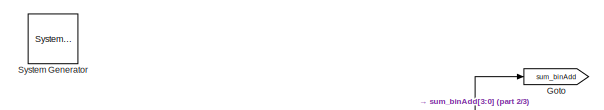
[diagram: root canvas - part 1/3, top left region]
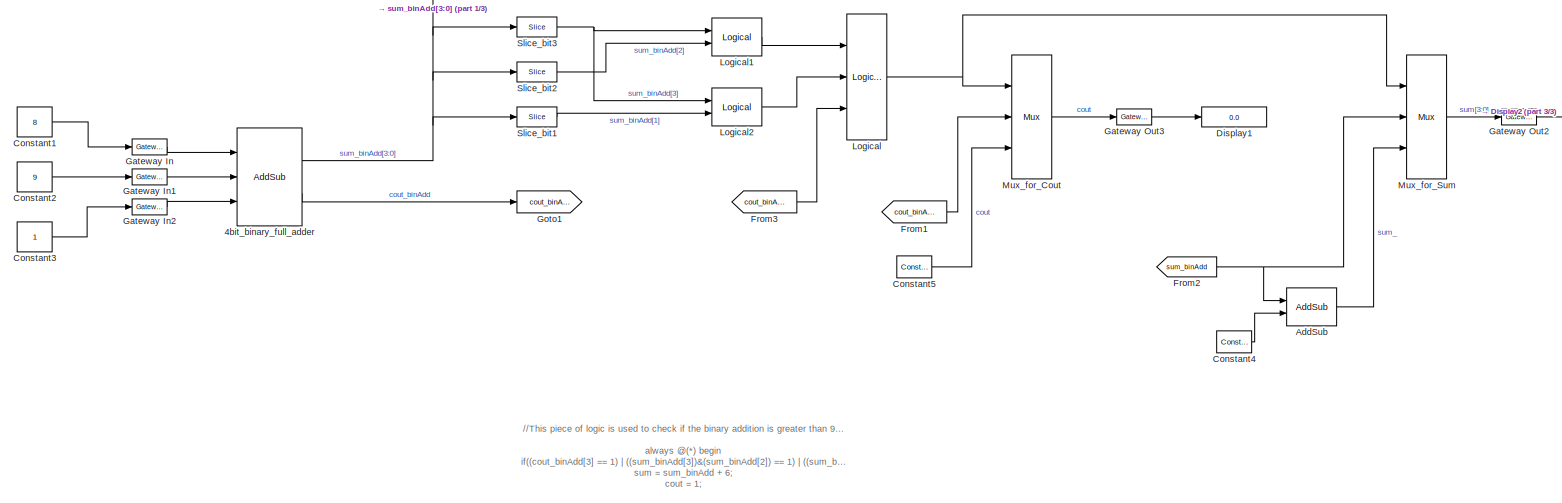
[diagram: root canvas - part 2/3, most of the canvas]
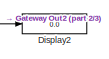
[diagram: root canvas - part 3/3, middle right region]
MODEL slx_13b7193d9d61
KIND model
CONFIG AbsTol = auto
CONFIG EnableMultiTasking = off
CONFIG FixedStep = 0.001
CONFIG MaxStep = auto
CONFIG MinStep = auto
CONFIG PostLoadFcn = , if any(exist('dsrtsu_mdlpostloadfcn', 'file') == [2, 3, 6]), try dsrtsu_mdlpostloadfcn('Execute', bdroot); catch fprintf('Error in PostLoadFcn (dsrtsu_mdlpostloadfcn) for model "%s":\n %s\n', bdroot, lasterr); end, end, \n
CONFIG RelTol = 1e-3
CONFIG SampleTimeConstraint = Unconstrained
CONFIG Solver = FixedStepAuto
CONFIG SolverName = FixedStepAuto
CONFIG StartTime = 0.0
CONFIG StopTime = 1
BLOCK [Reference]  System Generator  REF=xbsIndex_r4/ System Generator
  AttributesFormatString = System\nGenerator
  Ports = []
  SourceBlock = xbsIndex_r4/ System Generator
  SourceType = Xilinx System Generator Block
  Tag = genX
  UserDataPersistent = on
BLOCK [Reference] 4bit_binary_full_adder  REF=xbsIndex_r4/AddSub
  Ports = [3, 2]
  SourceBlock = xbsIndex_r4/AddSub
  SourceType = Xilinx Adder/Subtracter Block
BLOCK [Reference] AddSub  REF=xbsIndex_r4/AddSub
  Ports = [2, 1]
  SourceBlock = xbsIndex_r4/AddSub
  SourceType = Xilinx Adder/Subtracter Block
BLOCK [Constant] Constant1
  OutDataTypeStr = uint8
  OutMax = 9
  OutMin = 0
  Value = 8
BLOCK [Constant] Constant2
  OutDataTypeStr = uint8
  OutMax = 9
  OutMin = 0
  Value = 9
BLOCK [Constant] Constant3
  OutDataTypeStr = uint8
BLOCK [Reference] Constant4  REF=xbsIndex_r4/Constant
  Ports = [0, 1]
  SourceBlock = xbsIndex_r4/Constant
  SourceType = Xilinx Constant Block Block
BLOCK [Reference] Constant5  REF=xbsIndex_r4/Constant
  Ports = [0, 1]
  SourceBlock = xbsIndex_r4/Constant
  SourceType = Xilinx Constant Block Block
BLOCK [Display] Display1
  Decimation = 1
  Format = hex (Stored Integer)
  Ports = [1]
BLOCK [Display] Display2
  Decimation = 1
  Format = hex (Stored Integer)
  Ports = [1]
BLOCK [From] From1
  GotoTag = cout_binAdd
  TagVisibility = global
BLOCK [From] From2
  GotoTag = sum_binAdd
  TagVisibility = global
BLOCK [From] From3
  GotoTag = cout_binAdd
  TagVisibility = global
BLOCK [Reference] Gateway In  REF=xbsIndex_r4/Gateway In
  Ports = [1, 1]
  SourceBlock = xbsIndex_r4/Gateway In
  SourceType = Xilinx Gateway In Block
BLOCK [Reference] Gateway In1  REF=xbsIndex_r4/Gateway In
  Ports = [1, 1]
  SourceBlock = xbsIndex_r4/Gateway In
  SourceType = Xilinx Gateway In Block
BLOCK [Reference] Gateway In2  REF=xbsIndex_r4/Gateway In
  Ports = [1, 1]
  SourceBlock = xbsIndex_r4/Gateway In
  SourceType = Xilinx Gateway In Block
BLOCK [Reference] Gateway Out2  REF=xbsIndex_r4/Gateway Out
  Ports = [1, 1]
  SourceBlock = xbsIndex_r4/Gateway Out
  SourceType = Xilinx Gateway Out Block
BLOCK [Reference] Gateway Out3  REF=xbsIndex_r4/Gateway Out
  Ports = [1, 1]
  SourceBlock = xbsIndex_r4/Gateway Out
  SourceType = Xilinx Gateway Out Block
BLOCK [Goto] Goto
  GotoTag = sum_binAdd
  TagVisibility = global
BLOCK [Goto] Goto1
  GotoTag = cout_binAdd
  TagVisibility = global
BLOCK [Reference] Logical  REF=xbsIndex_r4/Logical
  Ports = [3, 1]
  SourceBlock = xbsIndex_r4/Logical
  SourceType = Xilinx Logical Block Block
BLOCK [Reference] Logical1  REF=xbsIndex_r4/Logical
  Ports = [2, 1]
  SourceBlock = xbsIndex_r4/Logical
  SourceType = Xilinx Logical Block Block
BLOCK [Reference] Logical2  REF=xbsIndex_r4/Logical
  Ports = [2, 1]
  SourceBlock = xbsIndex_r4/Logical
  SourceType = Xilinx Logical Block Block
BLOCK [Reference] Mux_for_Cout  REF=xbsIndex_r4/Mux
  Ports = [3, 1]
  SourceBlock = xbsIndex_r4/Mux
  SourceType = Xilinx Bus Multiplexer Block
BLOCK [Reference] Mux_for_Sum  REF=xbsIndex_r4/Mux
  Ports = [3, 1]
  SourceBlock = xbsIndex_r4/Mux
  SourceType = Xilinx Bus Multiplexer Block
BLOCK [Reference] Slice_bit1  REF=xbsIndex_r4/Slice
  Ports = [1, 1]
  SourceBlock = xbsIndex_r4/Slice
  SourceType = Xilinx Bit Slice Extractor Block
BLOCK [Reference] Slice_bit2  REF=xbsIndex_r4/Slice
  Ports = [1, 1]
  SourceBlock = xbsIndex_r4/Slice
  SourceType = Xilinx Bit Slice Extractor Block
BLOCK [Reference] Slice_bit3  REF=xbsIndex_r4/Slice
  Ports = [1, 1]
  SourceBlock = xbsIndex_r4/Slice
  SourceType = Xilinx Bit Slice Extractor Block
ANNOTATION (root): //This piece of logic is used to check if the binary addition is greater than 9d. If yes, it adds 6d to the binary addition 'sum'. always @(*) begin if((cout_binAdd[3] == 1) | ((sum_binAdd[3])&(sum_binAdd[2]) == 1) | ((sum_binAdd[3])&(sum_binAdd[1]) == 1)) begin sum = sum_binAdd + 6; cout = 1; end else begin sum = sum_binAdd; cout = cout_binAdd; end end
NET 4bit_binary_full_adder:1 -> Goto:1, Slice_bit1:1, Slice_bit2:1, Slice_bit3:1
LINE 4bit_binary_full_adder:2 -> Goto1:1
LINE AddSub:1 -> Mux_for_Sum:3
LINE Constant1:1 -> Gateway In:1
LINE Constant2:1 -> Gateway In1:1
LINE Constant3:1 -> Gateway In2:1
LINE Constant4:1 -> AddSub:2
LINE Constant5:1 -> Mux_for_Cout:3
LINE From1:1 -> Mux_for_Cout:2
NET From2:1 -> AddSub:1, Mux_for_Sum:2
LINE From3:1 -> Logical:3
LINE Gateway In1:1 -> 4bit_binary_full_adder:2
LINE Gateway In2:1 -> 4bit_binary_full_adder:3
LINE Gateway In:1 -> 4bit_binary_full_adder:1
LINE Gateway Out2:1 -> Display2:1
LINE Gateway Out3:1 -> Display1:1
LINE Logical1:1 -> Logical:1
LINE Logical2:1 -> Logical:2
NET Logical:1 -> Mux_for_Cout:1, Mux_for_Sum:1
LINE Mux_for_Cout:1 -> Gateway Out3:1
LINE Mux_for_Sum:1 -> Gateway Out2:1
LINE Slice_bit1:1 -> Logical2:2
LINE Slice_bit2:1 -> Logical1:2
NET Slice_bit3:1 -> Logical1:1, Logical2:1
note: NET lines group one-source signal fan-out (src -> all destinations, sorted); 1:1 wires keep LINE
